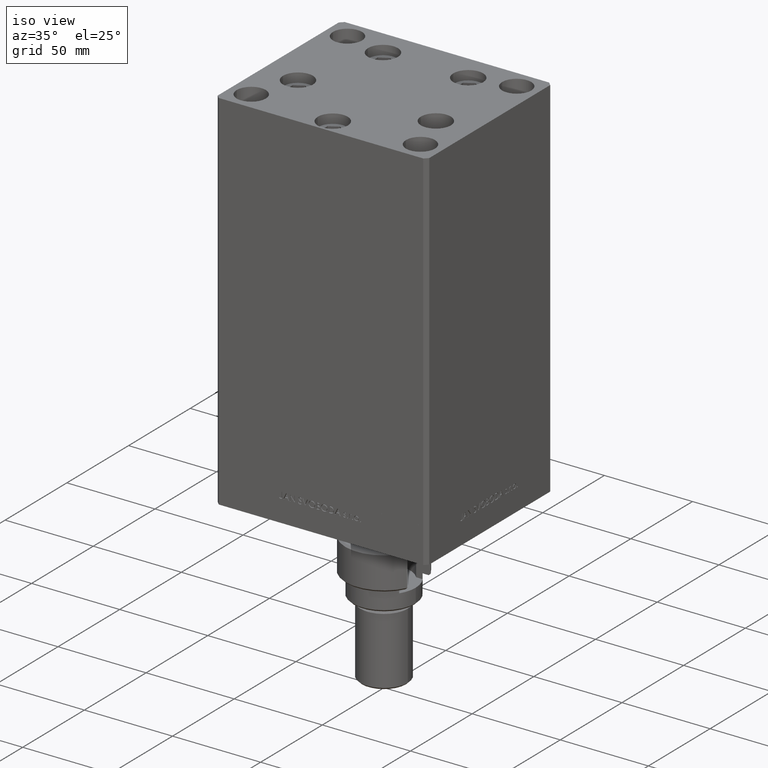
[diagram: clean part render]
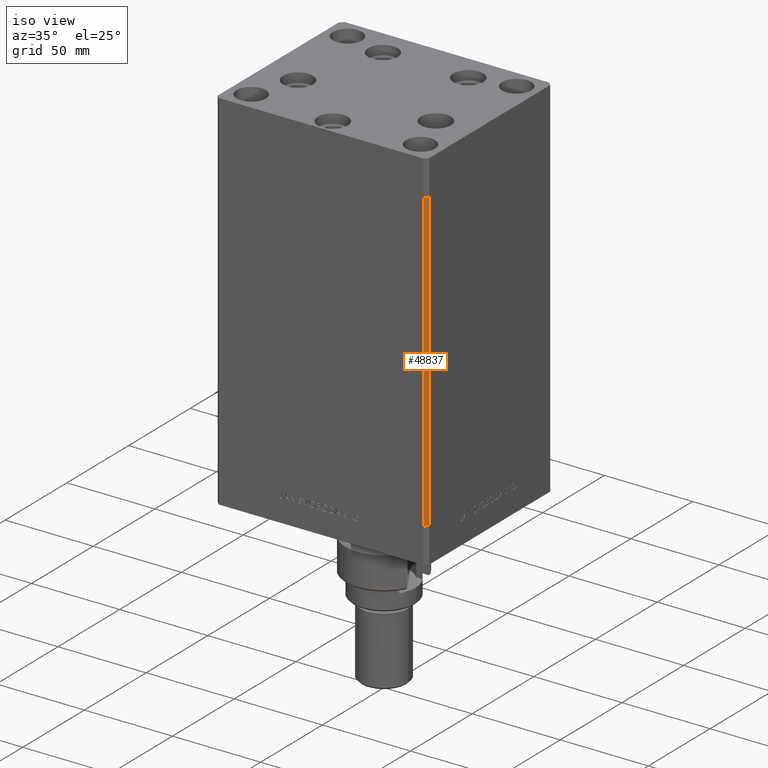
[diagram: same view with one face highlighted and labeled with its STEP entity id]
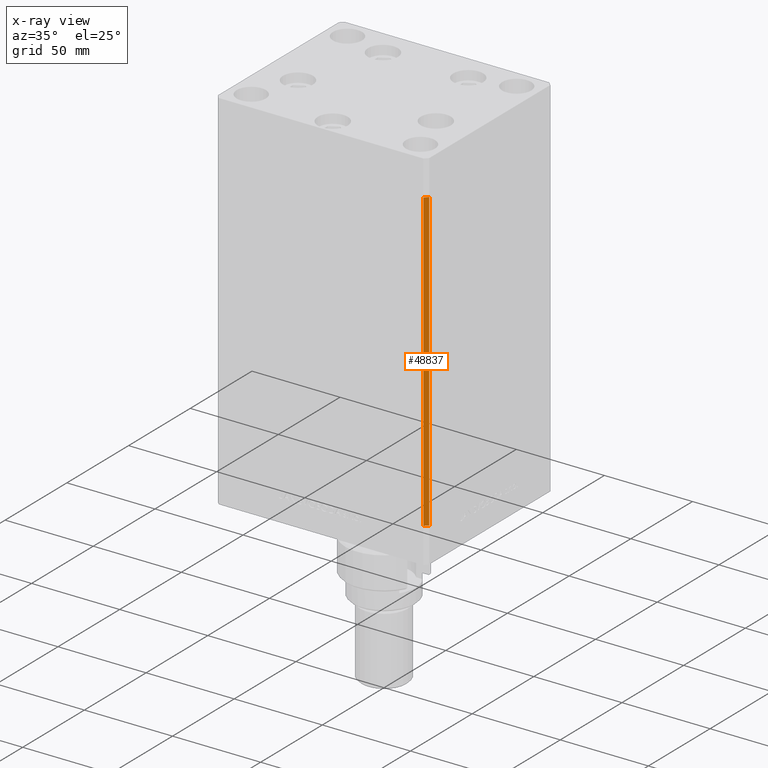
[diagram: x-ray of the same camera — body ghosted, the highlighted face saturated]
A machine part, iso view. The second image highlights one B-rep face of the part: STEP entity #48837.
The next image is the same camera in x-ray: the body ghosted, the highlighted face saturated — about 0% of this face is hidden behind the body in this view.
In plain terms, the highlighted planar face has unit normal (0.7071, -0.7071, 0).
Its self-contained STEP definition (entity closure, byte-faithful):
#3596 = CARTESIAN_POINT ( 'NONE',  ( 57.99999999999997868, -51.00000000000000711, 0.000000000000000000 ) ) ;
#3694 = LINE ( 'NONE', #5189, #48280 ) ;
#4386 = PLANE ( 'NONE',  #32299 ) ;
#5189 = CARTESIAN_POINT ( 'NONE',  ( 57.99999999999997868, -51.00000000000000711, 168.5000000000000000 ) ) ;
#5343 = EDGE_CURVE ( 'NONE', #21263, #29722, #28447, .T. ) ;
#8451 = DIRECTION ( 'NONE',  ( 0.7071067811865475727, -0.7071067811865475727, 0.000000000000000000 ) ) ;
#8536 = CARTESIAN_POINT ( 'NONE',  ( 59.99999999999998579, -49.00000000000000000, 0.000000000000000000 ) ) ;
#9036 = VERTEX_POINT ( 'NONE', #8536 ) ;
#11417 = EDGE_CURVE ( 'NONE', #29722, #32750, #3694, .T. ) ;
#11938 = DIRECTION ( 'NONE',  ( -0.7071067811865474617, -0.7071067811865474617, 0.000000000000000000 ) ) ;
#12770 = CARTESIAN_POINT ( 'NONE',  ( 59.99999999999998579, -49.00000000000000000, 168.5000000000000000 ) ) ;
#16394 = DIRECTION ( 'NONE',  ( -0.000000000000000000, -0.000000000000000000, -1.000000000000000000 ) ) ;
#16762 = CARTESIAN_POINT ( 'NONE',  ( 59.99999999999998579, -49.00000000000000000, 168.5000000000000000 ) ) ;
#17080 = DIRECTION ( 'NONE',  ( 0.7071067811865474617, 0.7071067811865474617, 0.000000000000000000 ) ) ;
#17978 = VECTOR ( 'NONE', #11938, 1000.000000000000114 ) ;
#19853 = VECTOR ( 'NONE', #26725, 1000.000000000000000 ) ;
#19902 = CARTESIAN_POINT ( 'NONE',  ( 59.99999999999998579, -49.00000000000000000, 0.000000000000000000 ) ) ;
#20100 = ORIENTED_EDGE ( 'NONE', *, *, #32498, .F. ) ;
#20310 = CARTESIAN_POINT ( 'NONE',  ( 57.99999999999997868, -51.00000000000000711, 168.5000000000000000 ) ) ;
#20900 = FACE_OUTER_BOUND ( 'NONE', #40368, .T. ) ;
#21263 = VERTEX_POINT ( 'NONE', #22540 ) ;
#22540 = CARTESIAN_POINT ( 'NONE',  ( 59.99999999999998579, -49.00000000000000000, 168.5000000000000000 ) ) ;
#24603 = VECTOR ( 'NONE', #35938, 1000.000000000000114 ) ;
#26725 = DIRECTION ( 'NONE',  ( -0.000000000000000000, -0.000000000000000000, -1.000000000000000000 ) ) ;
#28447 = LINE ( 'NONE', #16762, #17978 ) ;
#29722 = VERTEX_POINT ( 'NONE', #20310 ) ;
#32299 = AXIS2_PLACEMENT_3D ( 'NONE', #12770, #8451, #17080 ) ;
#32498 = EDGE_CURVE ( 'NONE', #9036, #32750, #39254, .T. ) ;
#32750 = VERTEX_POINT ( 'NONE', #3596 ) ;
#32824 = ORIENTED_EDGE ( 'NONE', *, *, #11417, .T. ) ;
#35378 = CARTESIAN_POINT ( 'NONE',  ( 59.99999999999998579, -49.00000000000000000, 168.5000000000000000 ) ) ;
#35938 = DIRECTION ( 'NONE',  ( -0.7071067811865474617, -0.7071067811865474617, 0.000000000000000000 ) ) ;
#36625 = EDGE_CURVE ( 'NONE', #21263, #9036, #42766, .T. ) ;
#39254 = LINE ( 'NONE', #19902, #24603 ) ;
#40368 = EDGE_LOOP ( 'NONE', ( #20100, #42850, #46200, #32824 ) ) ;
#42766 = LINE ( 'NONE', #35378, #19853 ) ;
#42850 = ORIENTED_EDGE ( 'NONE', *, *, #36625, .F. ) ;
#46200 = ORIENTED_EDGE ( 'NONE', *, *, #5343, .T. ) ;
#48280 = VECTOR ( 'NONE', #16394, 1000.000000000000000 ) ;
#48837 = ADVANCED_FACE ( 'NONE', ( #20900 ), #4386, .T. ) ;